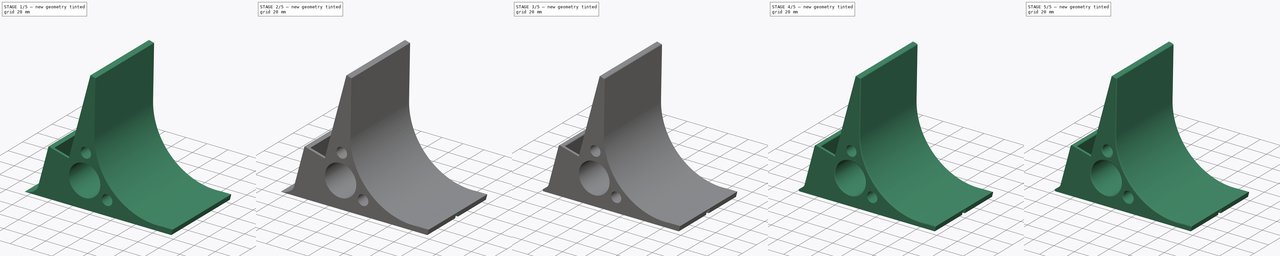
[diagram: build sequence overview — one tinted view per stage of 5, left to right]
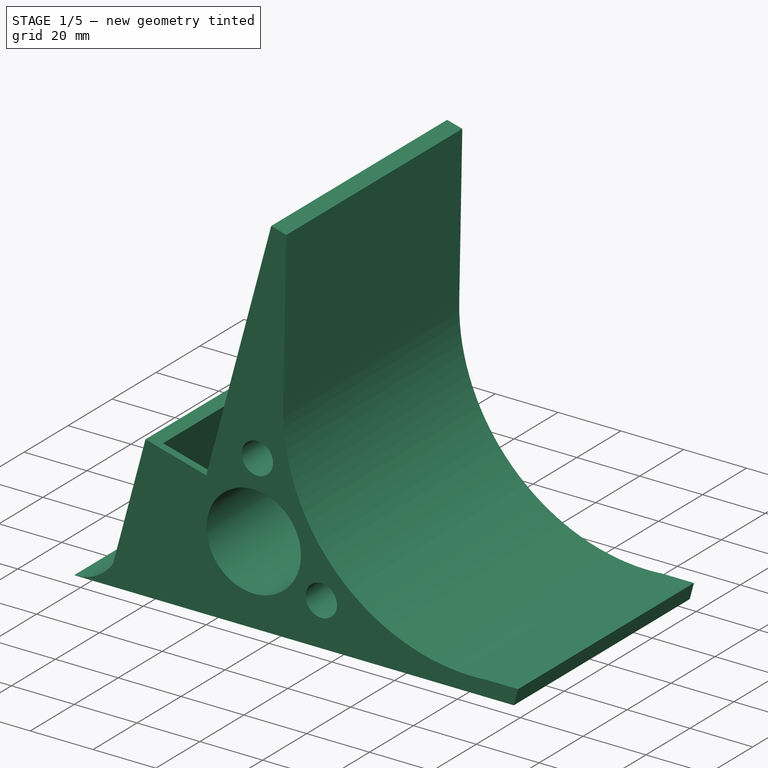
[diagram: stage 1 of 5 — iso view after this stage's code; geometry added in this stage tinted green]
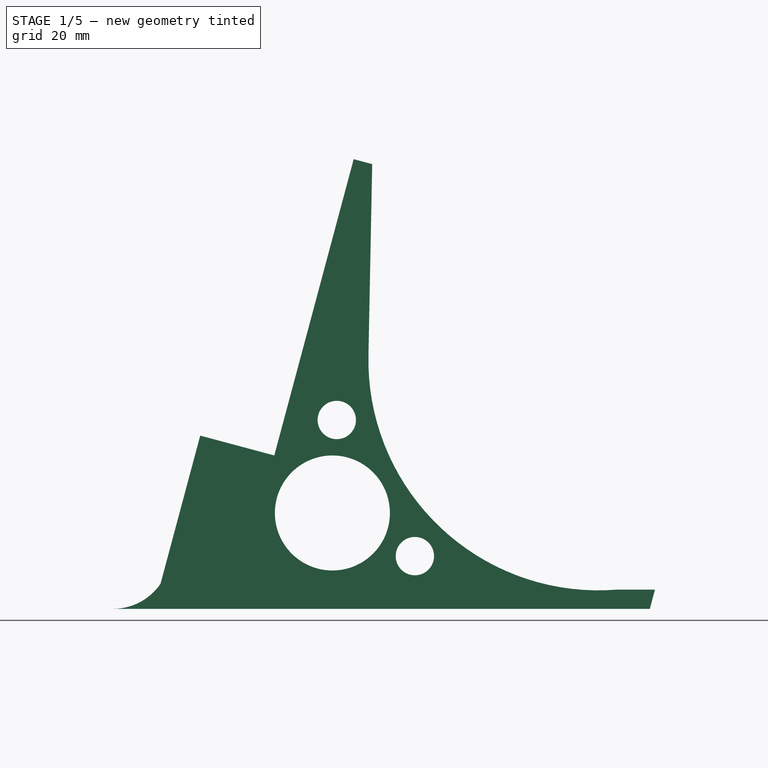
[diagram: stage 1 of 5 — front view after this stage's code; geometry added in this stage tinted green]
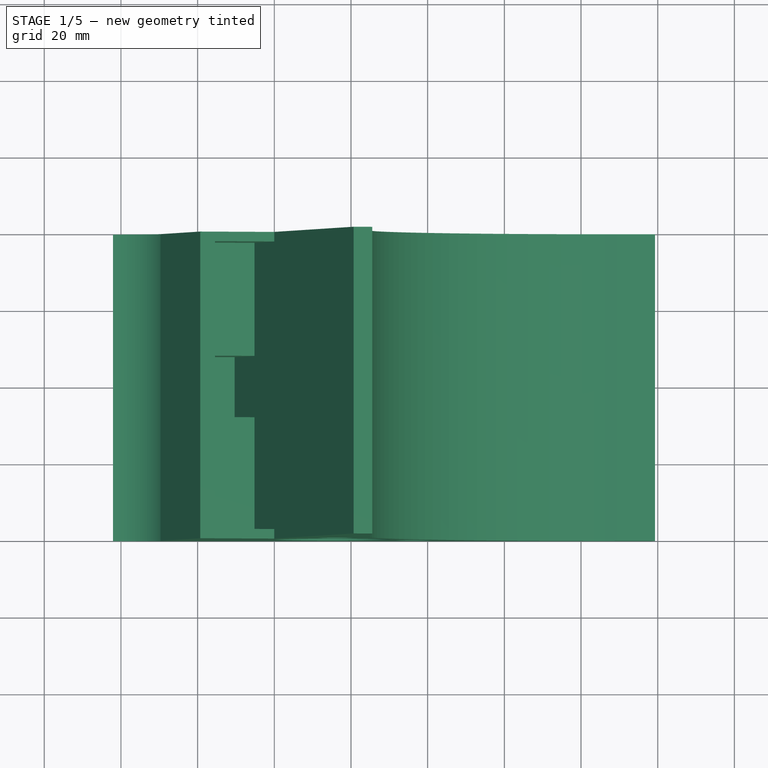
[diagram: stage 1 of 5 — top view after this stage's code; geometry added in this stage tinted green]
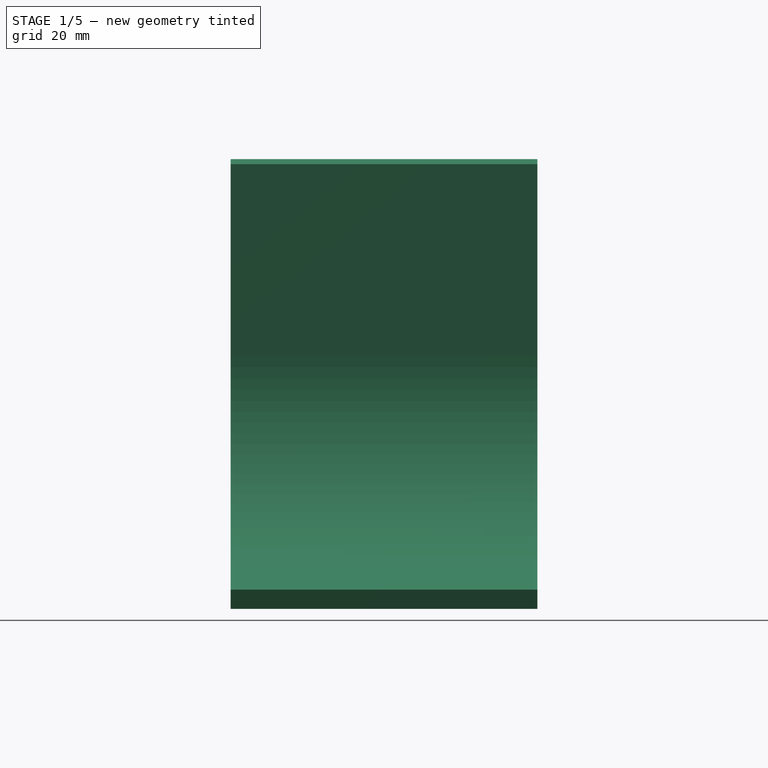
[diagram: stage 1 of 5 — right view after this stage's code; geometry added in this stage tinted green]
FCSTD DOCUMENT  (FreeCAD 0.16R6703 (Git))
Label: bennostand
License: All rights reserved
LicenseURL: http://en.wikipedia.org/wiki/All_rights_reserved
objects: PartDesign::Fillet×11, Sketcher::SketchObject×5, PartDesign::Pocket×4, PartDesign::Pad×1
note: 26 computed .brp shape members not serialized (recipe doc carries the construction recipe); baked Part::Feature solids carry a one-line shape summary decoded from their .brp

FEATURE [Sketcher::SketchObject] Sketch
  Placement = pos=(0,0,0) rot=(1,0,0;1.5708rad)
  sketch-geometry (26):
    g0: LineSegment StartX=0 StartY=0 StartZ=0 EndX=-19.3185 EndY=5.17638 EndZ=0
    g1: LineSegment StartX=-19.3185 StartY=5.17638 StartZ=0 EndX=-29.6713 EndY=-33.4607 EndZ=0
    g2: LineSegment StartX=-42.0575 StartY=-40 StartZ=0 EndX=97.9425 EndY=-40 EndZ=0
    g3: LineSegment StartX=97.9425 StartY=-40 StartZ=0 EndX=99.2823 EndY=-35 EndZ=0
    g4: LineSegment StartX=99.2823 StartY=-35 StartZ=0 EndX=89.2823 EndY=-35 EndZ=0
    g5: LineSegment StartX=24.5542 StartY=25.9896 StartZ=0 EndX=25.5352 EndY=75.98 EndZ=0
    g6: LineSegment StartX=25.5352 StartY=75.98 StartZ=0 EndX=20.7055 EndY=77.2741 EndZ=0
    g7: LineSegment StartX=20.7055 StartY=77.2741 StartZ=0 EndX=0 EndY=0 EndZ=0
    g8: ArcOfCircle CenterX=84.5427 CenterY=24.8125 CenterZ=0 NormalX=0 NormalY=0 NormalZ=1 Radius=60 StartAngle=3.12197 EndAngle=4.79146
    g9: Circle CenterX=16.2945 CenterY=9.25043 CenterZ=0 NormalX=0 NormalY=0 NormalZ=1 Radius=5
    g10: Circle CenterX=15.1528 CenterY=-15 CenterZ=0 NormalX=0 NormalY=0 NormalZ=1 Radius=15
    g11: Circle CenterX=36.6646 CenterY=-26.253 CenterZ=0 NormalX=0 NormalY=0 NormalZ=1 Radius=5
    g12: Circle [constr] CenterX=84.5427 CenterY=24.8125 CenterZ=0 NormalX=0 NormalY=0 NormalZ=1 Radius=65
    g13: LineSegment [constr] StartX=15.1528 StartY=-15 StartZ=0 EndX=84.5427 EndY=24.8125 EndZ=0
    g14: LineSegment [constr] StartX=16.2945 StartY=9.25043 StartZ=0 EndX=84.5427 EndY=24.8125 EndZ=0
    g15: LineSegment [constr] StartX=84.5427 StartY=24.8125 StartZ=0 EndX=36.6646 EndY=-26.253 EndZ=0
    g16: GeomPoint [constr] X=28.1634 Y=-7.53515 Z=0
    g17: GeomPoint [constr] X=28.1634 Y=-7.53515 Z=0
    g18: GeomPoint [constr] X=28.1634 Y=-7.53515 Z=0
    g19: GeomPoint [constr] X=21.1693 Y=10.362 Z=0
    g20: GeomPoint [constr] X=21.1693 Y=10.362 Z=0
    g21: GeomPoint [constr] X=21.1693 Y=10.362 Z=0
    g22: GeomPoint [constr] X=40.0844 Y=-22.6054 Z=0
    g23: GeomPoint [constr] X=40.0844 Y=-22.6054 Z=0
    g24: GeomPoint [constr] X=40.0844 Y=-22.6054 Z=0
    g25: ArcOfCircle CenterX=-42.0575 CenterY=-25 CenterZ=0 NormalX=0 NormalY=0 NormalZ=1 Radius=15 StartAngle=4.71239 EndAngle=5.68391
  constraints (59):
    c: Coincident(g-1,g0)
    c: Horizontal(g2)
    c: Coincident(g2,g3)
    c: Coincident(g3,g4)
    c: Horizontal(g4)
    c: Coincident(g5,g6)
    c: Coincident(g6,g7)
    c: Coincident(g7,g0)
    c: Angle(g2,g7) = 1.309
    c: Parallel(g1,g3)
    c: Perpendicular(g0,g7)
    c: Perpendicular(g7,g6)
    c: Distance(g0) = 20
    c: Tangent(g5,g8) = 1.5708
    c: Distance(g6) = 5
    c: DistanceY(g2,g-1) = 40
    c: DistanceX(g2,g2) = 140
    c: Radius(g8) = 60
    c: DistanceX(g4,g4) = 10
    c: Distance(g5) = 50
    c: Coincident(g4,g8)
    c: DistanceY(g2,g3) = 5
    c: Tangent(g10,g-1)
    c: Coincident(g12,g8)
    c: Radius(g12) = 65
    c: Equal(g9,g11)
    c: Coincident(g13,g10)
    c: Coincident(g13,g8)
    c: Coincident(g14,g9)
    c: Coincident(g14,g8)
    c: Coincident(g15,g8)
    c: Coincident(g15,g11)
    c: PointOnObject(g16,g12)
    c: PointOnObject(g17,g10)
    c: Coincident(g17,g16)
    c: PointOnObject(g18,g13)
    c: Coincident(g16,g18)
    c: PointOnObject(g19,g12)
    c: PointOnObject(g20,g9)
    c: Coincident(g20,g19)
    c: PointOnObject(g21,g14)
    c: Coincident(g19,g21)
    c: PointOnObject(g22,g12)
    c: PointOnObject(g23,g11)
    c: Coincident(g22,g23)
    c: PointOnObject(g24,g15)
    c: Coincident(g22,g24)
    c: Angle(g14,g13) = 0.296706
    c: Angle(g13,g15) = 0.296706
    c: Radius(g10) = 15
    c: Radius(g9) = 5
    c: Coincident(g25,g1)
    c: Coincident(g2,g25)
    c: Distance(g1) = 40
    c: DistanceY(g2,g25) = 15
    c: DistanceX(g25,g2) = 0
    c: Coincident(g1,g0)
    c: Distance(g7) = 80
    c: Parallel(g1,g7)
FEATURE [PartDesign::Pad] Pad
  Length = 80
  Length2 = 100
  Midplane = true
  Placement = pos=(0,0,0) rot=(1,0,0;1.5708rad)
  Sketch = -> Sketch
  Type = 0
FEATURE [Sketcher::SketchObject] Sketch001
  Placement = pos=(0,0,0) rot=(0.130526,0,0.991445;3.14159rad)
  Support = -> Pad [Face4]
  sketch-geometry (4):
    g0: LineSegment StartX=0 StartY=37.5 StartZ=0 EndX=16 EndY=37.5 EndZ=0
    g1: LineSegment StartX=16 StartY=37.5 StartZ=0 EndX=16 EndY=-37.5 EndZ=0
    g2: LineSegment StartX=16 StartY=-37.5 StartZ=0 EndX=0 EndY=-37.5 EndZ=0
    g3: LineSegment StartX=0 StartY=-37.5 StartZ=0 EndX=0 EndY=37.5 EndZ=0
  constraints (12):
    c: Coincident(g0,g1)
    c: Coincident(g1,g2)
    c: Coincident(g2,g3)
    c: Coincident(g3,g0)
    c: Horizontal(g0)
    c: Horizontal(g2)
    c: Vertical(g1)
    c: Vertical(g3)
    c: PointOnObject(g0,g-2)
    c: Symmetric(g0,g1,g-1)
    c: DistanceX(g0,g0) = 16
    c: DistanceY(g1,g1) = 75
FEATURE [PartDesign::Pocket] Pocket
  Length = 20
  Placement = pos=(0,0,0) rot=(1,0,0;1.5708rad)
  Sketch = -> Sketch001
  Type = 0
FEATURE [Sketcher::SketchObject] Sketch002
  Placement = pos=(-5.17638,0,-19.3185) rot=(0.130526,0,0.991445;3.14159rad)
  Support = -> Pocket [Face20]
  sketch-geometry (4):
    g0: LineSegment StartX=0 StartY=8 StartZ=0 EndX=15 EndY=8 EndZ=0
    g1: LineSegment StartX=15 StartY=8 StartZ=0 EndX=15 EndY=-8 EndZ=0
    g2: LineSegment StartX=15 StartY=-8 StartZ=0 EndX=0 EndY=-8 EndZ=0
    g3: LineSegment StartX=0 StartY=-8 StartZ=0 EndX=0 EndY=8 EndZ=0
  constraints (12):
    c: Coincident(g0,g1)
    c: Coincident(g1,g2)
    c: Coincident(g2,g3)
    c: Coincident(g3,g0)
    c: Horizontal(g0)
    c: Horizontal(g2)
    c: Vertical(g1)
    c: Vertical(g3)
    c: PointOnObject(g0,g-2)
    c: Symmetric(g1,g0,g-1)
    c: DistanceX(g0,g0) = 15
    c: DistanceY(g3,g3) = 16
FEATURE [PartDesign::Pocket] Pocket001
  Length = 20
  Placement = pos=(0,0,0) rot=(1,0,0;1.5708rad)
  Sketch = -> Sketch002
  Type = 0
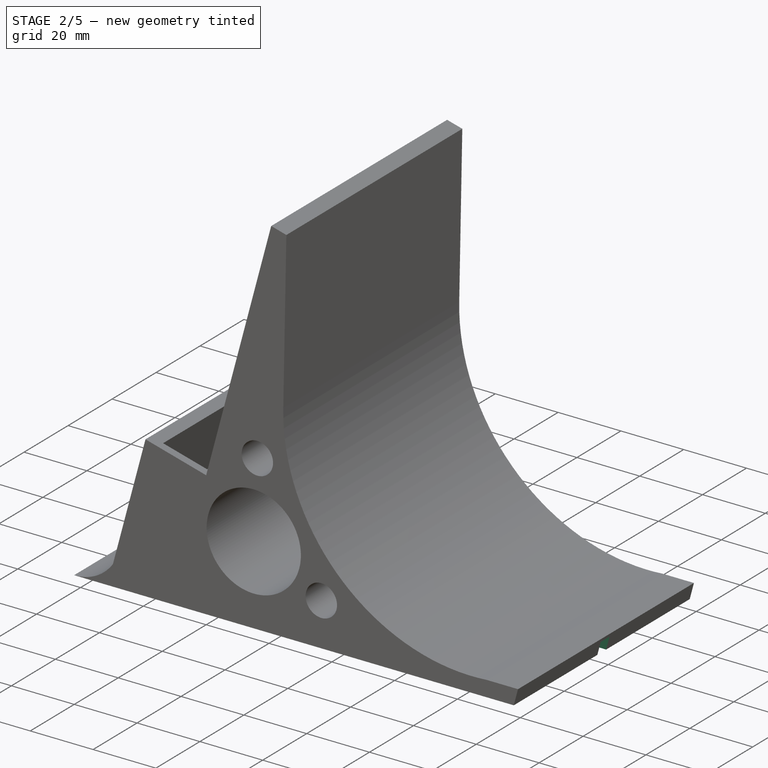
[diagram: stage 2 of 5 — iso view after this stage's code; geometry added in this stage tinted green]
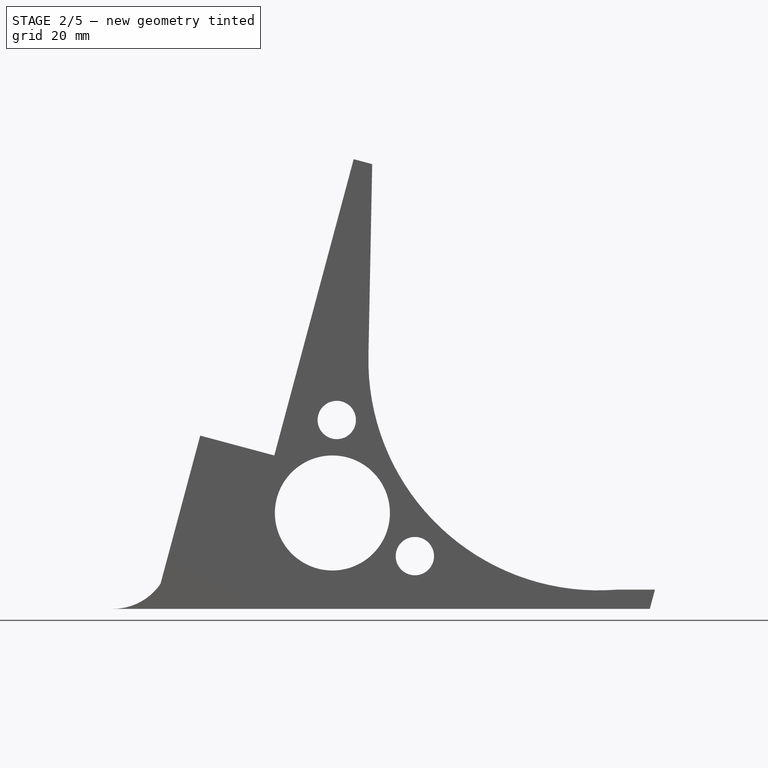
[diagram: stage 2 of 5 — front view after this stage's code; geometry added in this stage tinted green]
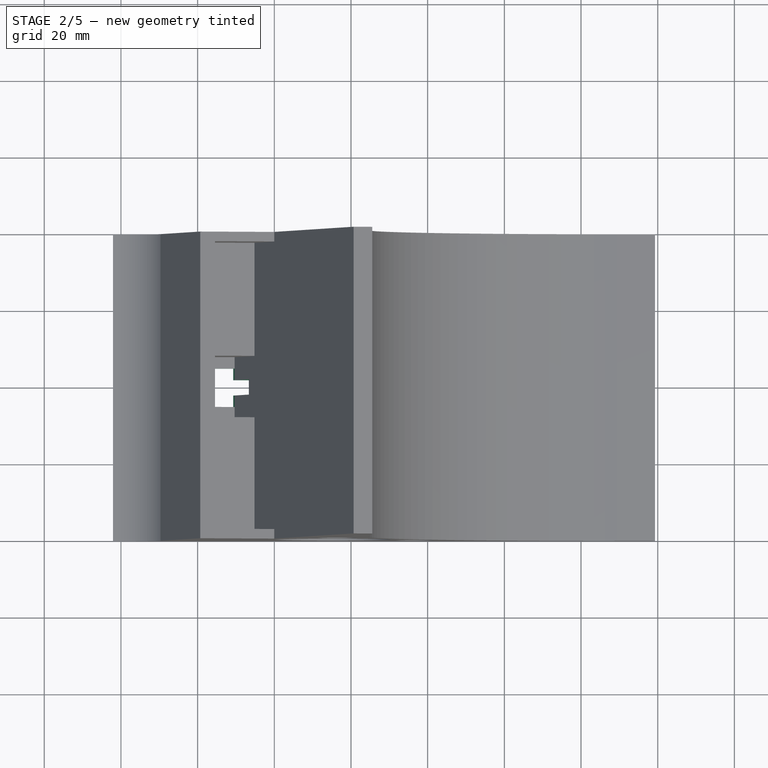
[diagram: stage 2 of 5 — top view after this stage's code; geometry added in this stage tinted green]
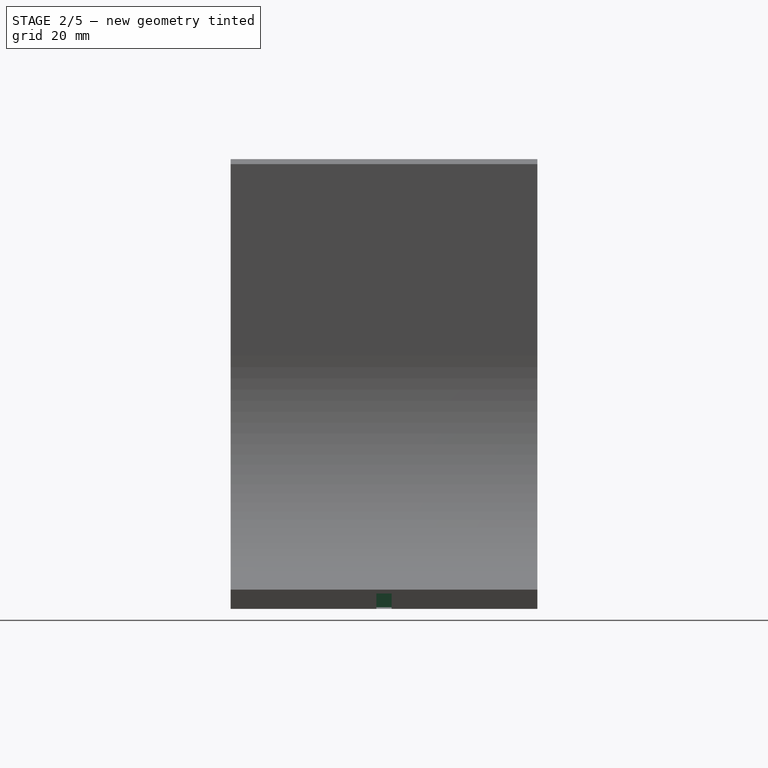
[diagram: stage 2 of 5 — right view after this stage's code; geometry added in this stage tinted green]
FEATURE [Sketcher::SketchObject] Sketch003
  Placement = pos=(-5.17638,0,-19.3185) rot=(0.130526,0,0.991445;3.14159rad)
  Support = -> Pocket001 [Face20]
  sketch-geometry (4):
    g0: LineSegment StartX=0 StartY=5 StartZ=0 EndX=15 EndY=5 EndZ=0
    g1: LineSegment StartX=15 StartY=5 StartZ=0 EndX=15 EndY=-5 EndZ=0
    g2: LineSegment StartX=15 StartY=-5 StartZ=0 EndX=0 EndY=-5 EndZ=0
    g3: LineSegment StartX=0 StartY=-5 StartZ=0 EndX=0 EndY=5 EndZ=0
  constraints (12):
    c: Coincident(g0,g1)
    c: Coincident(g1,g2)
    c: Coincident(g2,g3)
    c: Coincident(g3,g0)
    c: Horizontal(g0)
    c: Horizontal(g2)
    c: Vertical(g1)
    c: Vertical(g3)
    c: PointOnObject(g0,g-2)
    c: Symmetric(g0,g1,g-1)
    c: DistanceX(g0,g0) = 15
    c: DistanceY(g1,g1) = 10
FEATURE [PartDesign::Pocket] Pocket002
  Length = 25
  Placement = pos=(0,0,0) rot=(1,0,0;1.5708rad)
  Sketch = -> Sketch003
  Type = 0
FEATURE [Sketcher::SketchObject] Sketch004
  Placement = pos=(0,0,-40) rot=(1,0,0;3.14159rad)
  Support = -> Pocket002 [Face11]
  sketch-geometry (4):
    g0: LineSegment StartX=-12 StartY=2 StartZ=0 EndX=113 EndY=2 EndZ=0
    g1: LineSegment StartX=113 StartY=2 StartZ=0 EndX=113 EndY=-2 EndZ=0
    g2: LineSegment StartX=113 StartY=-2 StartZ=0 EndX=-12 EndY=-2 EndZ=0
    g3: LineSegment StartX=-12 StartY=-2 StartZ=0 EndX=-12 EndY=2 EndZ=0
  constraints (12):
    c: Coincident(g0,g1)
    c: Coincident(g1,g2)
    c: Coincident(g2,g3)
    c: Coincident(g3,g0)
    c: Horizontal(g0)
    c: Horizontal(g2)
    c: Vertical(g1)
    c: Vertical(g3)
    c: Symmetric(g0,g1,g-1)
    c: DistanceY(g3,g3) = 4
    c: DistanceX(g0,g0) = 125
    c: DistanceX(g0,g-1) = 12
FEATURE [PartDesign::Pocket] Pocket003
  Length = 4
  Placement = pos=(0,0,0) rot=(1,0,0;1.5708rad)
  Sketch = -> Sketch004
  Type = 0
FEATURE [PartDesign::Fillet] Fillet
  Base = -> Pocket003 [Edge85]
  Placement = pos=(0,0,0) rot=(1,0,0;1.5708rad)
  Radius = 10
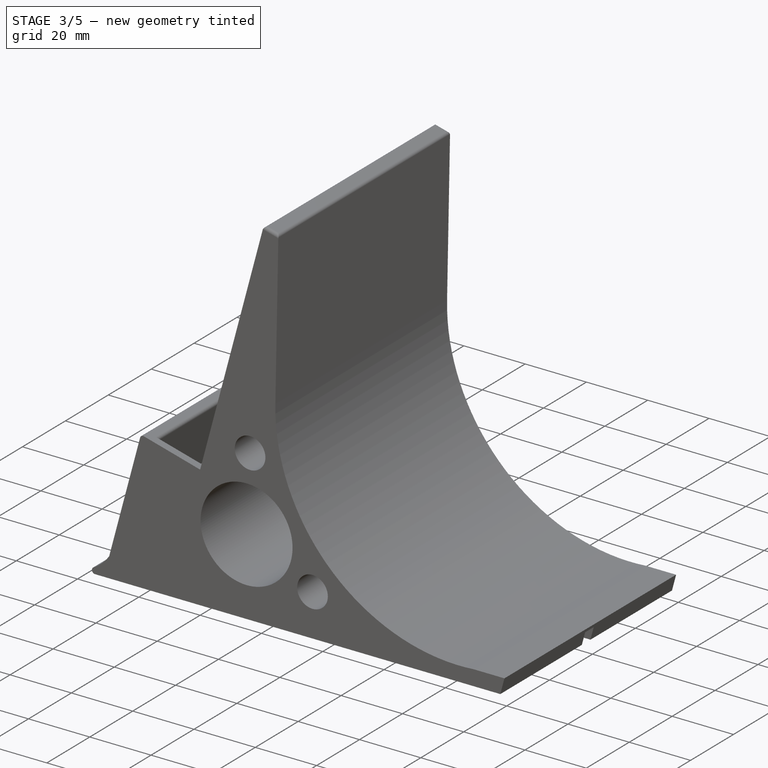
[diagram: stage 3 of 5 — iso view after this stage's code; geometry added in this stage tinted green]
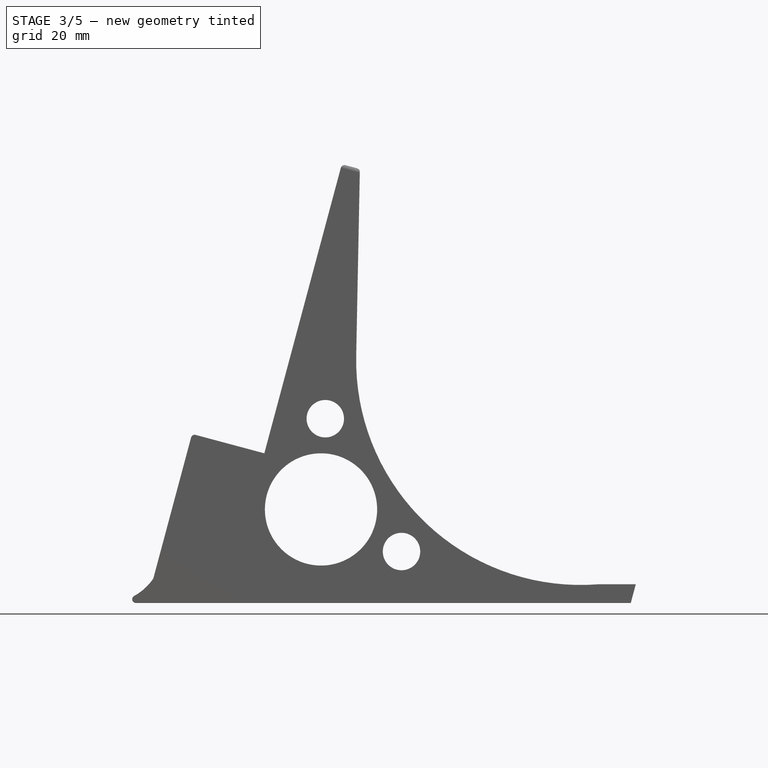
[diagram: stage 3 of 5 — front view after this stage's code; geometry added in this stage tinted green]
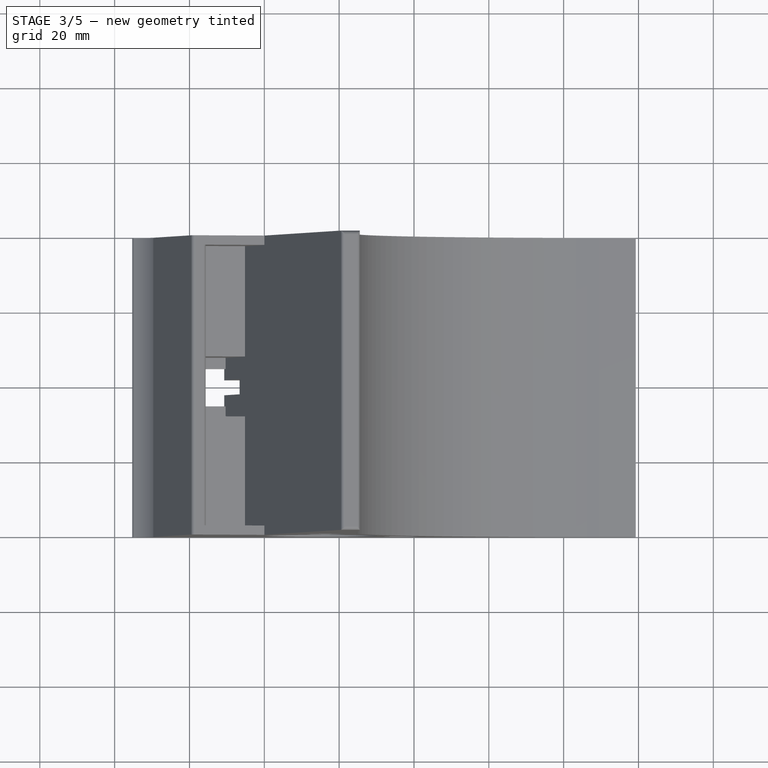
[diagram: stage 3 of 5 — top view after this stage's code; geometry added in this stage tinted green]
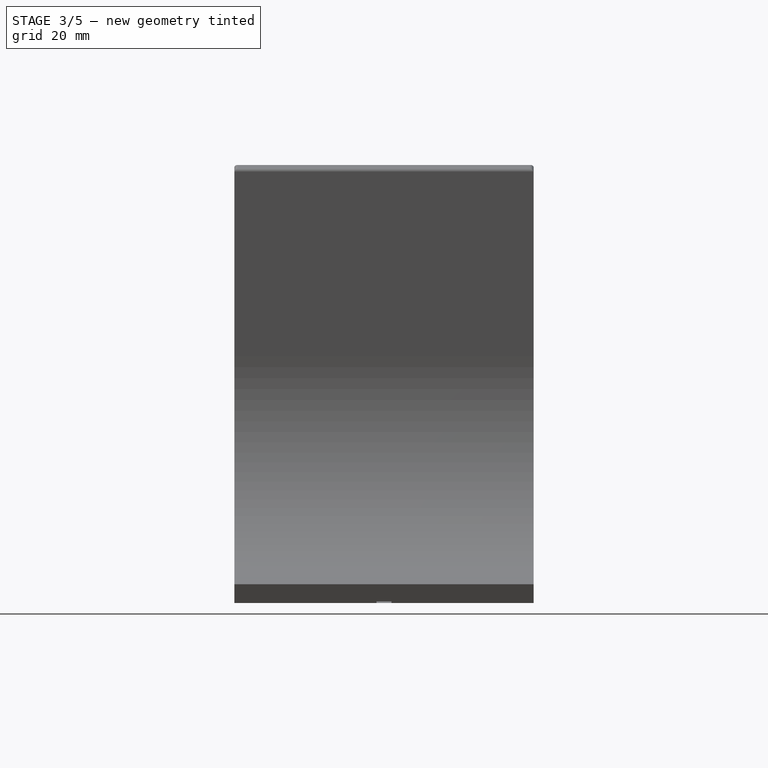
[diagram: stage 3 of 5 — right view after this stage's code; geometry added in this stage tinted green]
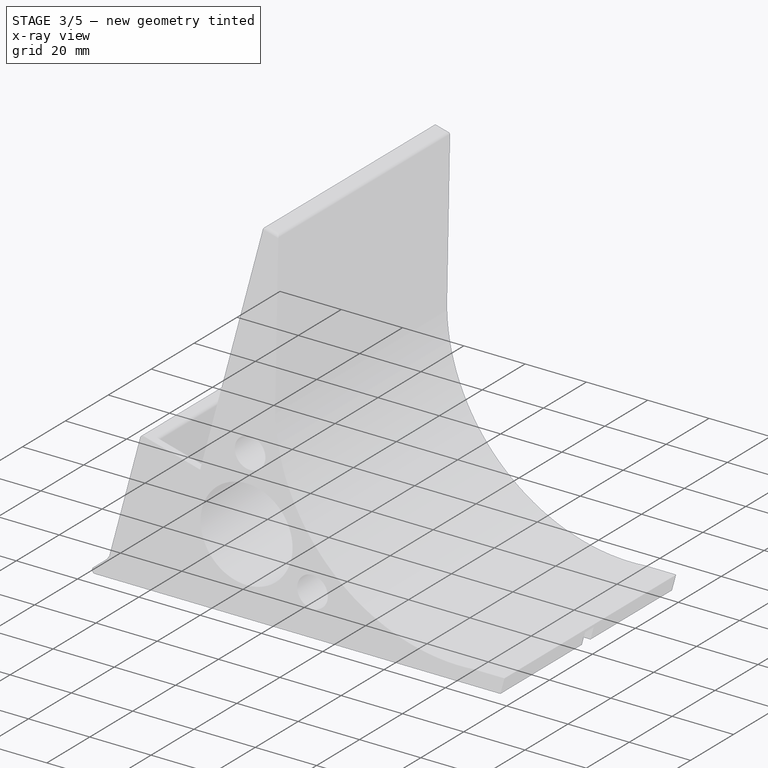
[diagram: stage 3 of 5 — x-ray composite at the iso view; earlier geometry ghosted, this stage's added geometry solid]
FEATURE [PartDesign::Fillet] Fillet001
  Base = -> Fillet [Edge34]
  Placement = pos=(0,0,0) rot=(1,0,0;1.5708rad)
  Radius = 1
FEATURE [PartDesign::Fillet] Fillet002
  Base = -> Fillet001 [Edge69]
  Placement = pos=(0,0,0) rot=(1,0,0;1.5708rad)
  Radius = 1
FEATURE [PartDesign::Fillet] Fillet003
  Base = -> Fillet002 [Edge8]
  Placement = pos=(0,0,0) rot=(1,0,0;1.5708rad)
  Radius = 1
FEATURE [PartDesign::Fillet] Fillet004
  Base = -> Fillet003 [Edge63,Edge27,Edge34,Edge17]
  Placement = pos=(0,0,0) rot=(1,0,0;1.5708rad)
  Radius = 1
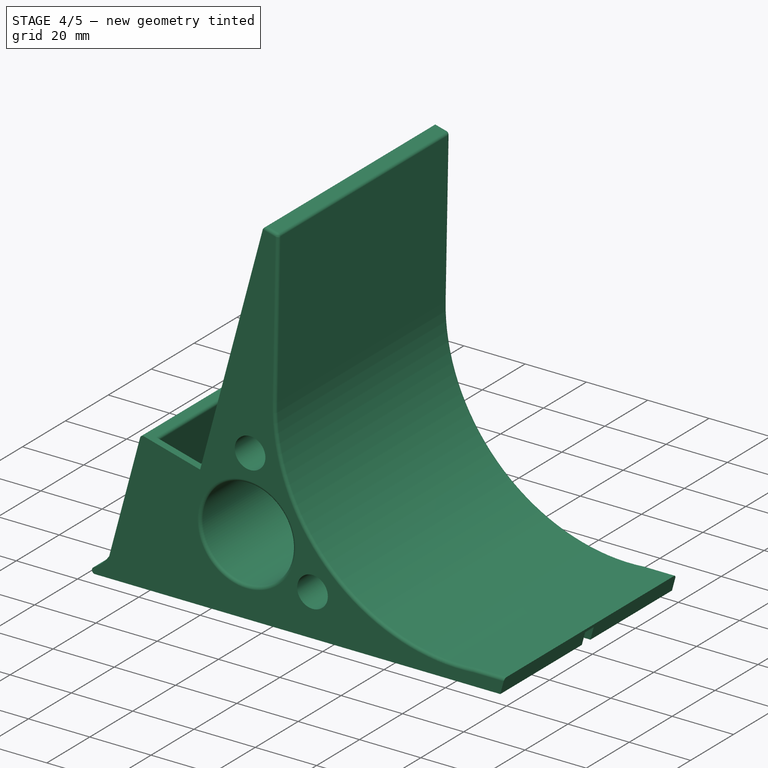
[diagram: stage 4 of 5 — iso view after this stage's code; geometry added in this stage tinted green]
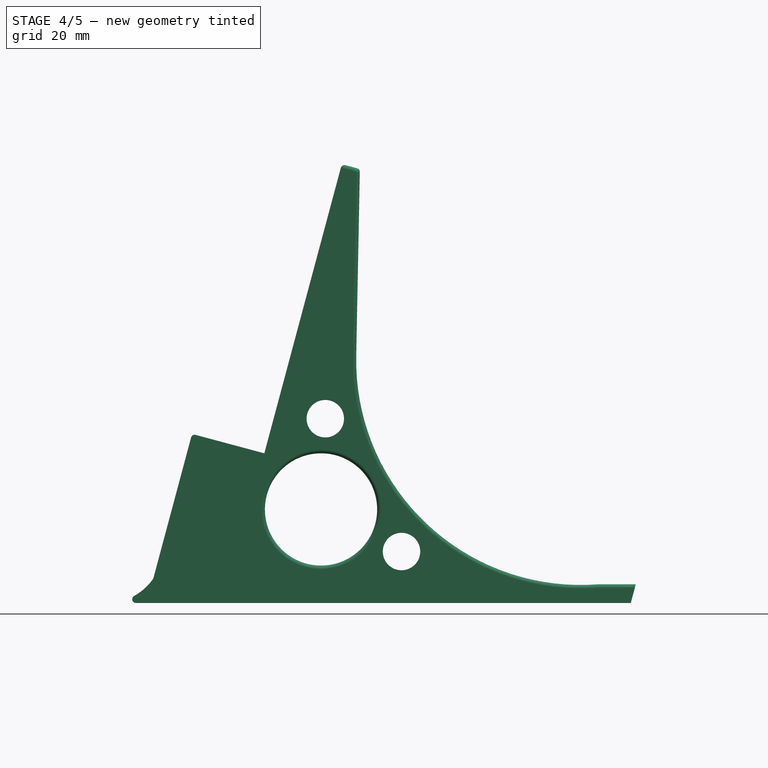
[diagram: stage 4 of 5 — front view after this stage's code; geometry added in this stage tinted green]
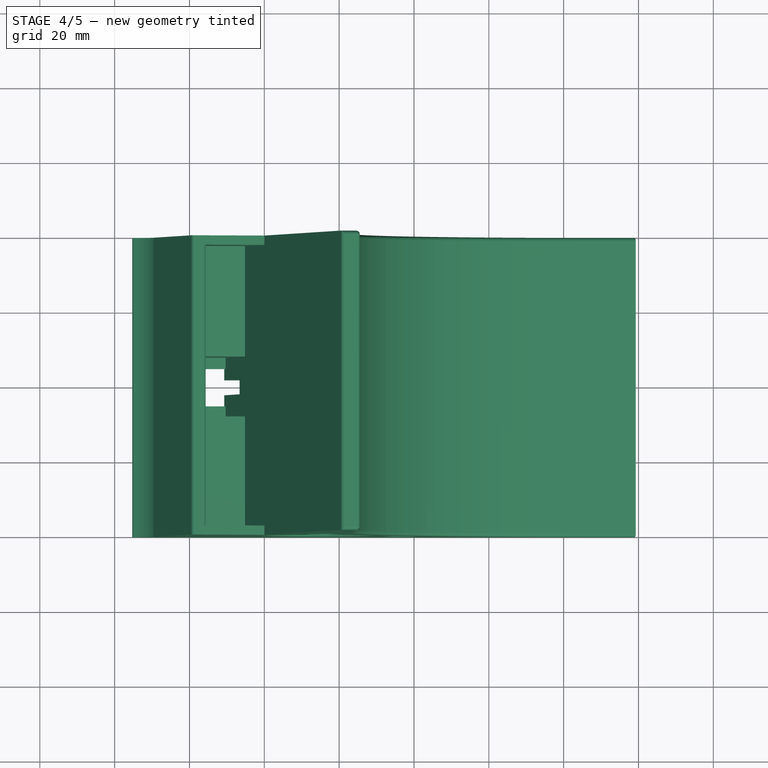
[diagram: stage 4 of 5 — top view after this stage's code; geometry added in this stage tinted green]
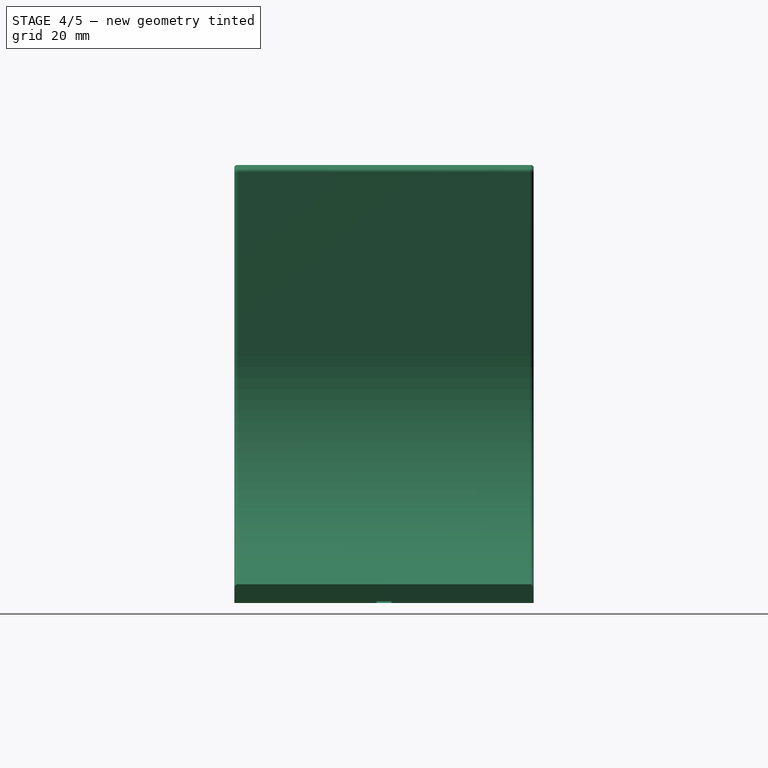
[diagram: stage 4 of 5 — right view after this stage's code; geometry added in this stage tinted green]
FEATURE [PartDesign::Fillet] Fillet005
  Base = -> Fillet004 [Edge4,Edge6]
  Placement = pos=(0,0,0) rot=(1,0,0;1.5708rad)
  Radius = 1
FEATURE [PartDesign::Fillet] Fillet006
  Base = -> Fillet005 [Edge80,Edge84]
  Placement = pos=(0,0,0) rot=(1,0,0;1.5708rad)
  Radius = 1
FEATURE [PartDesign::Fillet] Fillet007
  Base = -> Fillet006 [Edge43]
  Placement = pos=(0,0,0) rot=(1,0,0;1.5708rad)
  Radius = 1
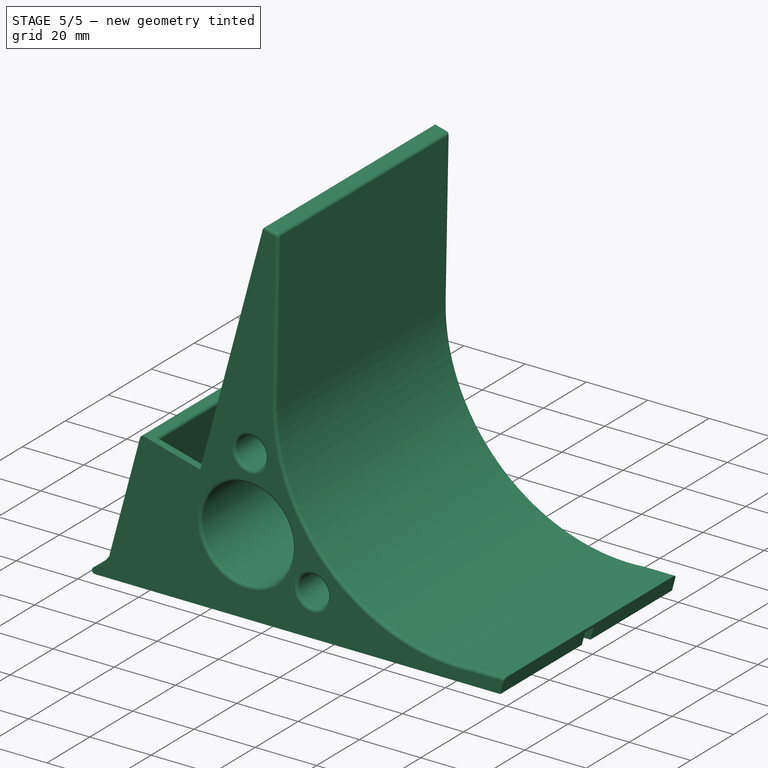
[diagram: stage 5 of 5 — iso view after this stage's code; geometry added in this stage tinted green]
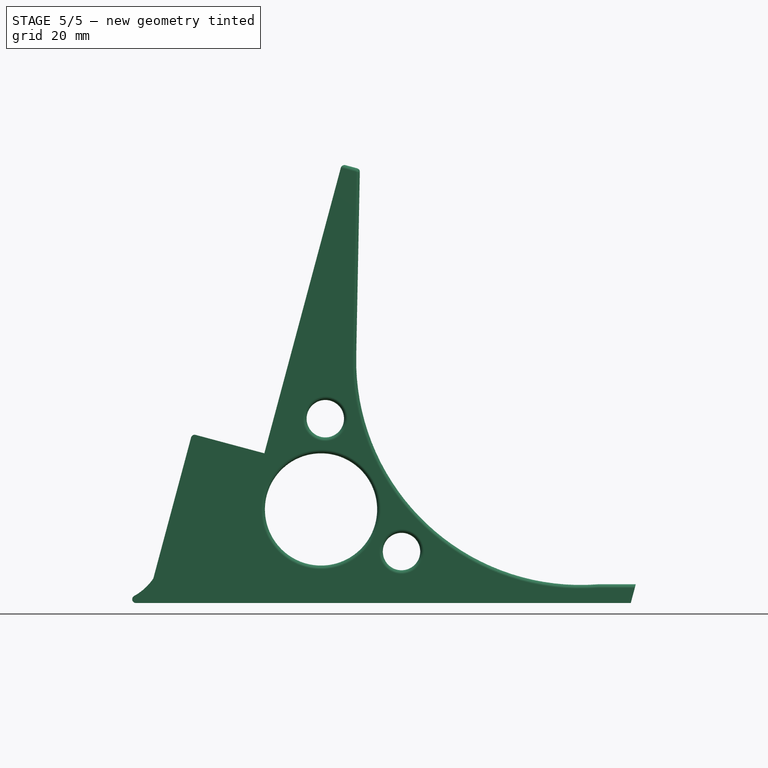
[diagram: stage 5 of 5 — front view after this stage's code; geometry added in this stage tinted green]
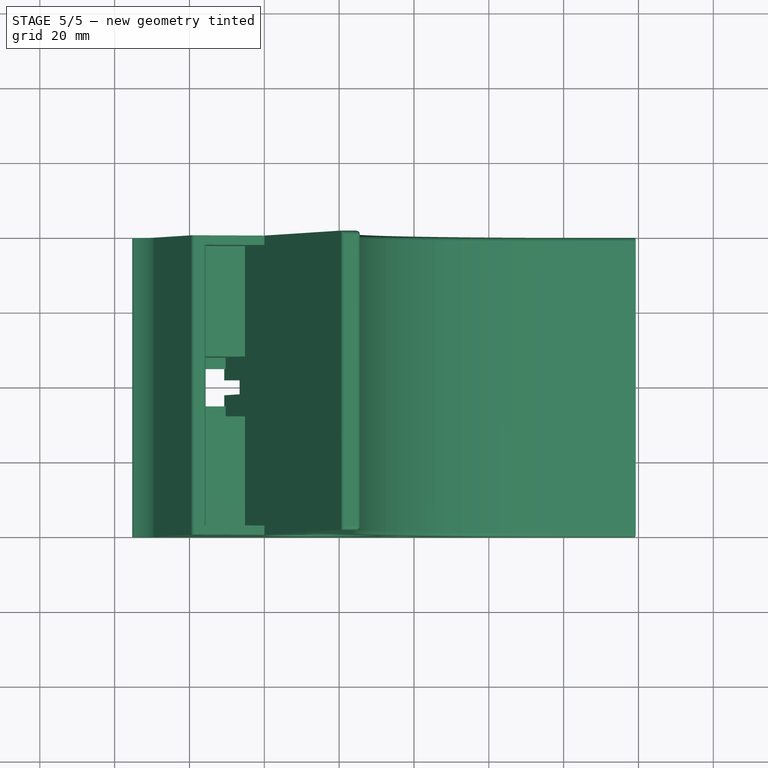
[diagram: stage 5 of 5 — top view after this stage's code; geometry added in this stage tinted green]
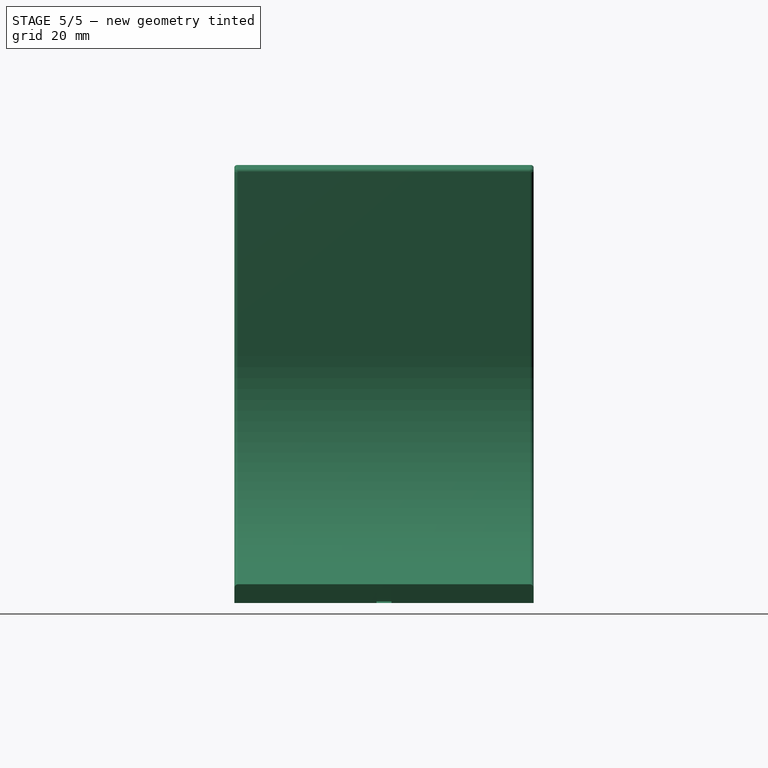
[diagram: stage 5 of 5 — right view after this stage's code; geometry added in this stage tinted green]
FEATURE [PartDesign::Fillet] Fillet008
  Base = -> Fillet007 [Edge15]
  Placement = pos=(0,0,0) rot=(1,0,0;1.5708rad)
  Radius = 1
FEATURE [PartDesign::Fillet] Fillet009
  Base = -> Fillet008 [Edge16]
  Placement = pos=(0,0,0) rot=(1,0,0;1.5708rad)
  Radius = 1
FEATURE [PartDesign::Fillet] Fillet010
  Base = -> Fillet009 [Edge73,Edge77,Edge75]
  Placement = pos=(0,0,0) rot=(1,0,0;1.5708rad)
  Radius = 1
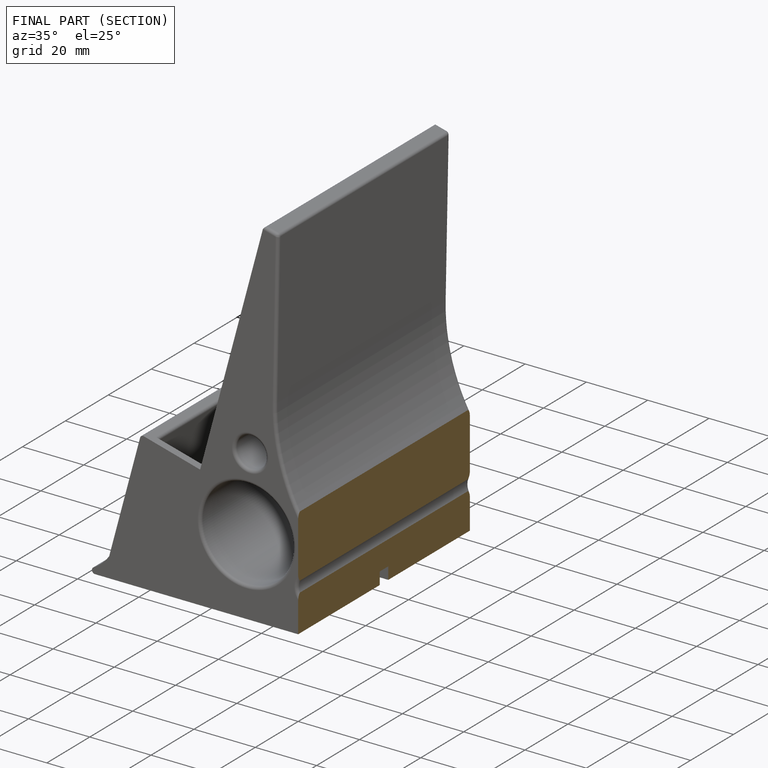
[diagram: finished part — half-section view (interior)]
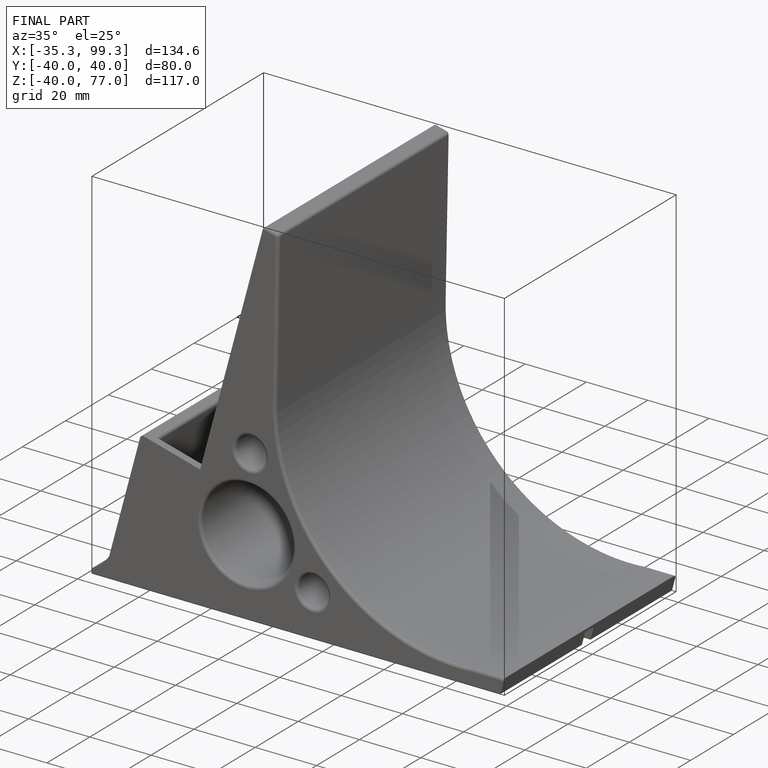
[diagram: finished part — iso view with bounding-box wireframe]
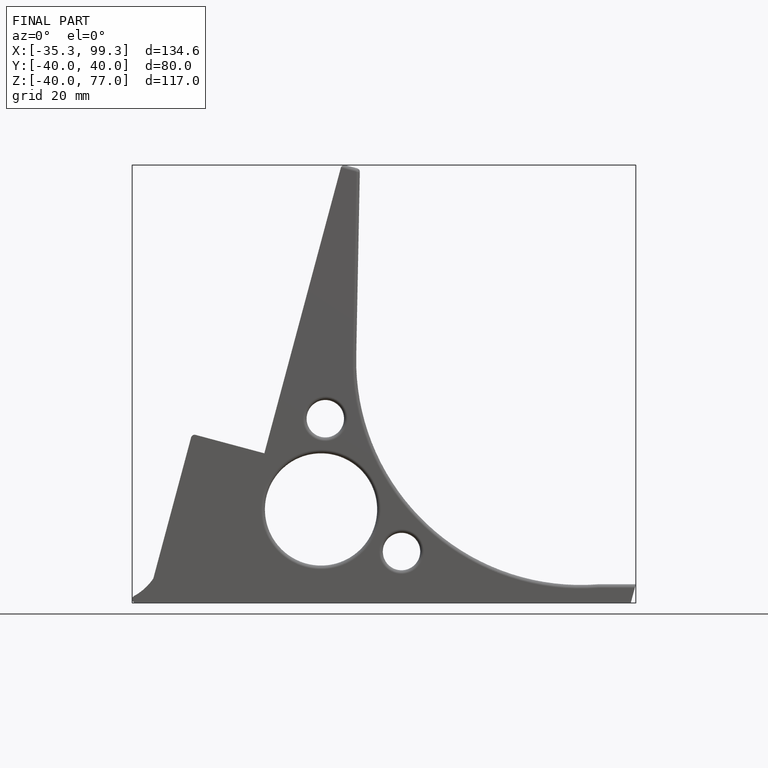
[diagram: finished part — front view with bounding-box wireframe]
